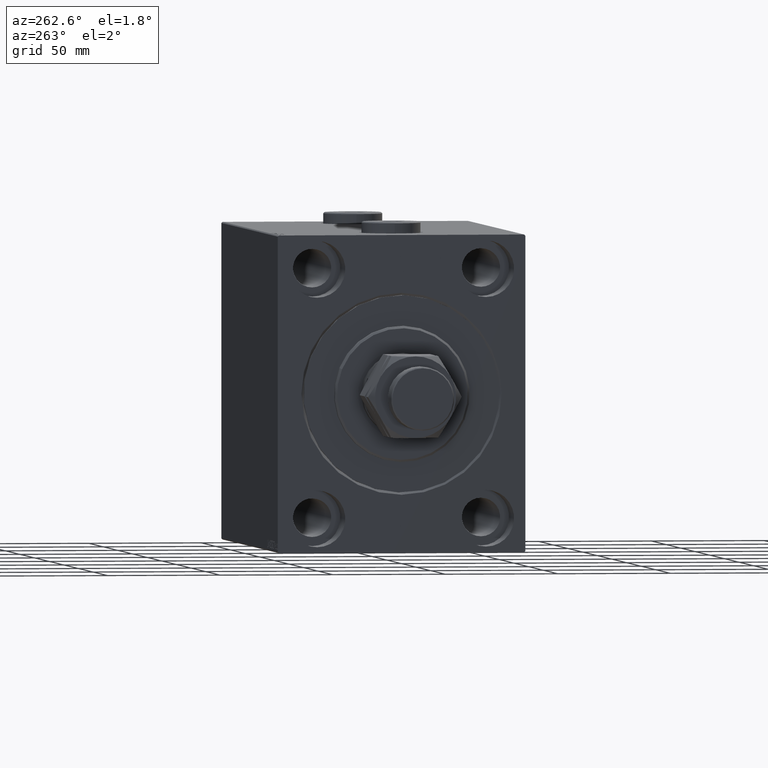
[diagram: clean part render]
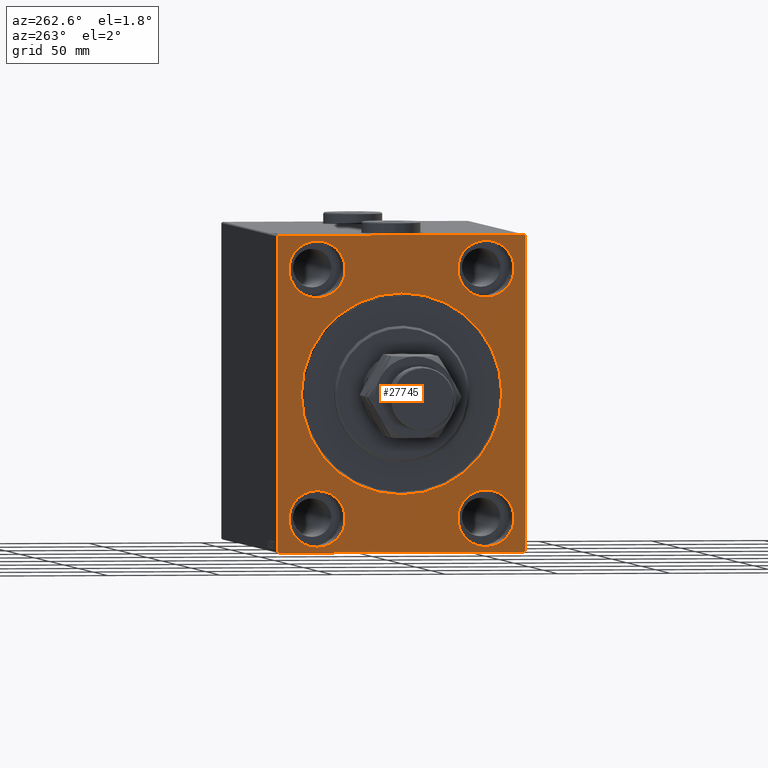
[diagram: same view with one face highlighted and labeled with its STEP entity id]
A machine part, auxiliary view. The second image highlights one B-rep face of the part: STEP entity #27745.
In plain terms, the highlighted planar face has unit normal (1, 0, 0).
Its self-contained STEP definition (entity closure, byte-faithful):
#203 = EDGE_LOOP ( 'NONE', ( #43280, #44381, #40561, #21263, #31493, #28659, #39140, #46953 ) ) ;
#244 = CARTESIAN_POINT ( 'NONE',  ( 0.000000000000000000, 37.50000000000000711, 67.50000000000000000 ) ) ;
#776 = AXIS2_PLACEMENT_3D ( 'NONE', #29131, #18419, #21264 ) ;
#875 = VERTEX_POINT ( 'NONE', #20127 ) ;
#919 = ORIENTED_EDGE ( 'NONE', *, *, #45797, .F. ) ;
#1018 = DIRECTION ( 'NONE',  ( -1.000000000000000000, 0.000000000000000000, 0.000000000000000000 ) ) ;
#1325 = CARTESIAN_POINT ( 'NONE',  ( 0.000000000000000000, 5.449678256205716459E-15, -44.49999999999995737 ) ) ;
#1589 = CARTESIAN_POINT ( 'NONE',  ( 0.000000000000000000, -37.50000000000002132, -54.99999999999999289 ) ) ;
#1684 = CIRCLE ( 'NONE', #31325, 12.49999999999999645 ) ;
#2136 = CARTESIAN_POINT ( 'NONE',  ( 0.000000000000000000, 54.99999999999999289, 69.50000000000002842 ) ) ;
#2695 = DIRECTION ( 'NONE',  ( 0.000000000000000000, 1.000000000000000000, 2.523234146875355012E-16 ) ) ;
#3017 = EDGE_CURVE ( 'NONE', #35442, #17844, #14392, .T. ) ;
#3040 = VERTEX_POINT ( 'NONE', #1325 ) ;
#3606 = FACE_BOUND ( 'NONE', #39785, .T. ) ;
#3824 = EDGE_CURVE ( 'NONE', #37777, #28014, #36268, .T. ) ;
#3840 = FACE_BOUND ( 'NONE', #5149, .T. ) ;
#3854 = EDGE_CURVE ( 'NONE', #15208, #27625, #34171, .T. ) ;
#4324 = AXIS2_PLACEMENT_3D ( 'NONE', #1589, #45124, #19656 ) ;
#4401 = EDGE_CURVE ( 'NONE', #36960, #31613, #10237, .T. ) ;
#4756 = DIRECTION ( 'NONE',  ( 0.000000000000000000, 0.000000000000000000, 1.000000000000000000 ) ) ;
#4856 = CARTESIAN_POINT ( 'NONE',  ( 0.000000000000000000, 0.000000000000000000, 0.000000000000000000 ) ) ;
#4894 = CARTESIAN_POINT ( 'NONE',  ( 0.000000000000000000, -55.00000000000000711, -69.50000000000007105 ) ) ;
#4985 = EDGE_CURVE ( 'NONE', #45806, #27922, #27184, .T. ) ;
#5149 = EDGE_LOOP ( 'NONE', ( #44983, #38479 ) ) ;
#5191 = ORIENTED_EDGE ( 'NONE', *, *, #19477, .F. ) ;
#7546 = DIRECTION ( 'NONE',  ( 1.000000000000000000, 0.000000000000000000, 0.000000000000000000 ) ) ;
#7706 = CARTESIAN_POINT ( 'NONE',  ( 0.000000000000000000, 37.49999999999997868, -54.99999999999999289 ) ) ;
#7984 = EDGE_CURVE ( 'NONE', #31860, #11246, #11512, .T. ) ;
#8081 = CARTESIAN_POINT ( 'NONE',  ( 0.000000000000000000, 54.49999999999999289, 70.00000000000000000 ) ) ;
#8499 = CARTESIAN_POINT ( 'NONE',  ( 0.000000000000000000, -54.50000000000003553, 69.99999999999998579 ) ) ;
#9454 = EDGE_CURVE ( 'NONE', #36594, #3040, #11539, .T. ) ;
#9676 = CARTESIAN_POINT ( 'NONE',  ( 0.000000000000000000, -37.50000000000000711, 67.50000000000000000 ) ) ;
#9755 = CARTESIAN_POINT ( 'NONE',  ( 0.000000000000000000, 0.000000000000000000, 44.49999999999995737 ) ) ;
#9988 = CARTESIAN_POINT ( 'NONE',  ( 0.000000000000000000, -54.50000000000000711, -70.00000000000002842 ) ) ;
#10237 = LINE ( 'NONE', #43053, #18964 ) ;
#10240 = EDGE_CURVE ( 'NONE', #17844, #35442, #1684, .T. ) ;
#10977 = FACE_BOUND ( 'NONE', #24381, .T. ) ;
#11246 = VERTEX_POINT ( 'NONE', #38907 ) ;
#11512 = CIRCLE ( 'NONE', #38088, 12.49999999999999645 ) ;
#11539 = CIRCLE ( 'NONE', #44207, 44.49999999999995737 ) ;
#11550 = CARTESIAN_POINT ( 'NONE',  ( 0.000000000000000000, 37.50000000000000711, 42.50000000000000711 ) ) ;
#12035 = CARTESIAN_POINT ( 'NONE',  ( 0.000000000000000000, -37.50000000000000711, 55.00000000000000711 ) ) ;
#12231 = ORIENTED_EDGE ( 'NONE', *, *, #7984, .F. ) ;
#12445 = EDGE_CURVE ( 'NONE', #875, #31613, #46220, .T. ) ;
#12647 = VECTOR ( 'NONE', #24588, 1000.000000000000000 ) ;
#12920 = DIRECTION ( 'NONE',  ( 1.000000000000000000, 0.000000000000000000, 0.000000000000000000 ) ) ;
#12979 = AXIS2_PLACEMENT_3D ( 'NONE', #26682, #1018, #15055 ) ;
#12982 = EDGE_LOOP ( 'NONE', ( #12231, #5191 ) ) ;
#14339 = CARTESIAN_POINT ( 'NONE',  ( 0.000000000000000000, 37.50000000000000711, 55.00000000000000711 ) ) ;
#14392 = CIRCLE ( 'NONE', #18187, 12.49999999999999645 ) ;
#14630 = DIRECTION ( 'NONE',  ( 0.000000000000000000, -1.982541115402065110E-16, 1.000000000000000000 ) ) ;
#14677 = VECTOR ( 'NONE', #44653, 1000.000000000000000 ) ;
#14833 = CARTESIAN_POINT ( 'NONE',  ( 0.000000000000000000, 37.49999999999997868, -42.49999999999999289 ) ) ;
#14948 = ORIENTED_EDGE ( 'NONE', *, *, #25339, .F. ) ;
#15055 = DIRECTION ( 'NONE',  ( 0.000000000000000000, 0.000000000000000000, 1.000000000000000000 ) ) ;
#15094 = VERTEX_POINT ( 'NONE', #11550 ) ;
#15208 = VERTEX_POINT ( 'NONE', #23170 ) ;
#15480 = DIRECTION ( 'NONE',  ( 0.000000000000000000, 0.000000000000000000, -1.000000000000000000 ) ) ;
#16491 = CARTESIAN_POINT ( 'NONE',  ( 0.000000000000000000, -55.00000000000000711, -70.00000000000002842 ) ) ;
#17395 = PLANE ( 'NONE',  #23386 ) ;
#17525 = CARTESIAN_POINT ( 'NONE',  ( 0.000000000000000000, -55.00000000000000711, 69.49999999999998579 ) ) ;
#17844 = VERTEX_POINT ( 'NONE', #9676 ) ;
#17920 = ORIENTED_EDGE ( 'NONE', *, *, #3017, .F. ) ;
#18013 = CARTESIAN_POINT ( 'NONE',  ( 0.000000000000000000, 0.000000000000000000, 0.000000000000000000 ) ) ;
#18187 = AXIS2_PLACEMENT_3D ( 'NONE', #12035, #26066, #40593 ) ;
#18419 = DIRECTION ( 'NONE',  ( -1.000000000000000000, 0.000000000000000000, 0.000000000000000000 ) ) ;
#18749 = CIRCLE ( 'NONE', #4324, 12.49999999999999645 ) ;
#18964 = VECTOR ( 'NONE', #29012, 1000.000000000000000 ) ;
#19272 = CARTESIAN_POINT ( 'NONE',  ( 0.000000000000000000, 54.50000000000004974, -70.00000000000000000 ) ) ;
#19477 = EDGE_CURVE ( 'NONE', #11246, #31860, #30096, .T. ) ;
#19656 = DIRECTION ( 'NONE',  ( 0.000000000000000000, 0.000000000000000000, 1.000000000000000000 ) ) ;
#20074 = CARTESIAN_POINT ( 'NONE',  ( 0.000000000000000000, 55.00000000000002132, -69.50000000000000000 ) ) ;
#20127 = CARTESIAN_POINT ( 'NONE',  ( 0.000000000000000000, 54.49999999999999289, 70.00000000000000000 ) ) ;
#20571 = EDGE_LOOP ( 'NONE', ( #26195, #17920 ) ) ;
#21263 = ORIENTED_EDGE ( 'NONE', *, *, #31224, .T. ) ;
#21264 = DIRECTION ( 'NONE',  ( 0.000000000000000000, 0.000000000000000000, 1.000000000000000000 ) ) ;
#22047 = DIRECTION ( 'NONE',  ( 0.000000000000000000, 0.000000000000000000, -1.000000000000000000 ) ) ;
#22665 = ORIENTED_EDGE ( 'NONE', *, *, #40742, .F. ) ;
#22708 = VECTOR ( 'NONE', #41149, 1000.000000000000000 ) ;
#23094 = CARTESIAN_POINT ( 'NONE',  ( 0.000000000000000000, 55.00000000000002132, -69.50000000000000000 ) ) ;
#23170 = CARTESIAN_POINT ( 'NONE',  ( 0.000000000000000000, -37.50000000000002132, -67.49999999999998579 ) ) ;
#23386 = AXIS2_PLACEMENT_3D ( 'NONE', #32366, #46656, #28804 ) ;
#23576 = VECTOR ( 'NONE', #2695, 1000.000000000000000 ) ;
#23942 = EDGE_CURVE ( 'NONE', #37777, #27922, #46238, .T. ) ;
#24381 = EDGE_LOOP ( 'NONE', ( #919, #22665 ) ) ;
#24588 = DIRECTION ( 'NONE',  ( 0.000000000000000000, -0.7071067811865279218, -0.7071067811865671127 ) ) ;
#24687 = CARTESIAN_POINT ( 'NONE',  ( 0.000000000000000000, -37.50000000000000711, 55.00000000000000711 ) ) ;
#25154 = DIRECTION ( 'NONE',  ( -1.000000000000000000, 0.000000000000000000, 0.000000000000000000 ) ) ;
#25339 = EDGE_CURVE ( 'NONE', #27625, #15208, #18749, .T. ) ;
#26066 = DIRECTION ( 'NONE',  ( -1.000000000000000000, 0.000000000000000000, 0.000000000000000000 ) ) ;
#26195 = ORIENTED_EDGE ( 'NONE', *, *, #10240, .F. ) ;
#26423 = VERTEX_POINT ( 'NONE', #4894 ) ;
#26682 = CARTESIAN_POINT ( 'NONE',  ( 0.000000000000000000, 37.50000000000000711, 55.00000000000000711 ) ) ;
#27184 = LINE ( 'NONE', #16491, #23576 ) ;
#27600 = AXIS2_PLACEMENT_3D ( 'NONE', #14339, #29714, #4756 ) ;
#27625 = VERTEX_POINT ( 'NONE', #29337 ) ;
#27745 = ADVANCED_FACE ( 'NONE', ( #3840, #39522, #29046, #10977, #3606, #32130 ), #17395, .F. ) ;
#27922 = VERTEX_POINT ( 'NONE', #19272 ) ;
#28014 = VERTEX_POINT ( 'NONE', #2136 ) ;
#28351 = CIRCLE ( 'NONE', #27600, 12.49999999999999645 ) ;
#28419 = CARTESIAN_POINT ( 'NONE',  ( 0.000000000000000000, 55.00000000000002132, -70.00000000000000000 ) ) ;
#28659 = ORIENTED_EDGE ( 'NONE', *, *, #23942, .T. ) ;
#28729 = DIRECTION ( 'NONE',  ( 0.000000000000000000, 0.000000000000000000, 1.000000000000000000 ) ) ;
#28804 = DIRECTION ( 'NONE',  ( 0.000000000000000000, 0.000000000000000000, -1.000000000000000000 ) ) ;
#29012 = DIRECTION ( 'NONE',  ( -0.000000000000000000, 0.7071067811865279218, 0.7071067811865671127 ) ) ;
#29046 = FACE_BOUND ( 'NONE', #20571, .T. ) ;
#29131 = CARTESIAN_POINT ( 'NONE',  ( 0.000000000000000000, -37.50000000000002132, -54.99999999999999289 ) ) ;
#29337 = CARTESIAN_POINT ( 'NONE',  ( 0.000000000000000000, -37.50000000000002132, -42.49999999999999289 ) ) ;
#29497 = LINE ( 'NONE', #8081, #22708 ) ;
#29714 = DIRECTION ( 'NONE',  ( -1.000000000000000000, 0.000000000000000000, 0.000000000000000000 ) ) ;
#30096 = CIRCLE ( 'NONE', #36188, 12.49999999999999645 ) ;
#31224 = EDGE_CURVE ( 'NONE', #875, #28014, #29497, .T. ) ;
#31325 = AXIS2_PLACEMENT_3D ( 'NONE', #24687, #25154, #28729 ) ;
#31493 = ORIENTED_EDGE ( 'NONE', *, *, #3824, .F. ) ;
#31613 = VERTEX_POINT ( 'NONE', #8499 ) ;
#31860 = VERTEX_POINT ( 'NONE', #14833 ) ;
#31869 = VECTOR ( 'NONE', #43541, 999.9999999999998863 ) ;
#32104 = CARTESIAN_POINT ( 'NONE',  ( 0.000000000000000000, -54.50000000000000711, -70.00000000000002842 ) ) ;
#32130 = FACE_OUTER_BOUND ( 'NONE', #203, .T. ) ;
#32366 = CARTESIAN_POINT ( 'NONE',  ( 0.000000000000000000, 0.000000000000000000, 0.000000000000000000 ) ) ;
#32528 = VERTEX_POINT ( 'NONE', #244 ) ;
#32830 = AXIS2_PLACEMENT_3D ( 'NONE', #4856, #12920, #41932 ) ;
#32921 = DIRECTION ( 'NONE',  ( 0.000000000000000000, 0.000000000000000000, 1.000000000000000000 ) ) ;
#33468 = ORIENTED_EDGE ( 'NONE', *, *, #3854, .F. ) ;
#33472 = CIRCLE ( 'NONE', #12979, 12.49999999999999645 ) ;
#33617 = CARTESIAN_POINT ( 'NONE',  ( 0.000000000000000000, 37.49999999999997868, -54.99999999999999289 ) ) ;
#33775 = CARTESIAN_POINT ( 'NONE',  ( 0.000000000000000000, -55.00000000000000711, 69.99999999999998579 ) ) ;
#33849 = DIRECTION ( 'NONE',  ( -1.000000000000000000, 0.000000000000000000, 0.000000000000000000 ) ) ;
#34171 = CIRCLE ( 'NONE', #776, 12.49999999999999645 ) ;
#35442 = VERTEX_POINT ( 'NONE', #40241 ) ;
#35790 = VECTOR ( 'NONE', #15480, 1000.000000000000000 ) ;
#36162 = LINE ( 'NONE', #32104, #31869 ) ;
#36188 = AXIS2_PLACEMENT_3D ( 'NONE', #33617, #33849, #41002 ) ;
#36268 = LINE ( 'NONE', #28419, #44065 ) ;
#36504 = DIRECTION ( 'NONE',  ( -1.000000000000000000, 0.000000000000000000, 0.000000000000000000 ) ) ;
#36594 = VERTEX_POINT ( 'NONE', #9755 ) ;
#36960 = VERTEX_POINT ( 'NONE', #17525 ) ;
#37777 = VERTEX_POINT ( 'NONE', #23094 ) ;
#37861 = EDGE_CURVE ( 'NONE', #45806, #26423, #36162, .T. ) ;
#37985 = CARTESIAN_POINT ( 'NONE',  ( 0.000000000000000000, 54.99999999999999289, 70.00000000000000000 ) ) ;
#38088 = AXIS2_PLACEMENT_3D ( 'NONE', #7706, #36504, #32921 ) ;
#38479 = ORIENTED_EDGE ( 'NONE', *, *, #43814, .T. ) ;
#38907 = CARTESIAN_POINT ( 'NONE',  ( 0.000000000000000000, 37.49999999999997868, -67.49999999999998579 ) ) ;
#38919 = CIRCLE ( 'NONE', #32830, 44.49999999999995737 ) ;
#39140 = ORIENTED_EDGE ( 'NONE', *, *, #4985, .F. ) ;
#39522 = FACE_BOUND ( 'NONE', #12982, .T. ) ;
#39785 = EDGE_LOOP ( 'NONE', ( #14948, #33468 ) ) ;
#40241 = CARTESIAN_POINT ( 'NONE',  ( 0.000000000000000000, -37.50000000000000711, 42.50000000000000711 ) ) ;
#40561 = ORIENTED_EDGE ( 'NONE', *, *, #12445, .F. ) ;
#40593 = DIRECTION ( 'NONE',  ( 0.000000000000000000, 0.000000000000000000, 1.000000000000000000 ) ) ;
#40691 = LINE ( 'NONE', #33775, #35790 ) ;
#40742 = EDGE_CURVE ( 'NONE', #15094, #32528, #33472, .T. ) ;
#41002 = DIRECTION ( 'NONE',  ( 0.000000000000000000, 0.000000000000000000, 1.000000000000000000 ) ) ;
#41149 = DIRECTION ( 'NONE',  ( -0.000000000000000000, 0.7071067811865671127, -0.7071067811865279218 ) ) ;
#41881 = EDGE_CURVE ( 'NONE', #36960, #26423, #40691, .T. ) ;
#41932 = DIRECTION ( 'NONE',  ( 0.000000000000000000, 0.000000000000000000, -1.000000000000000000 ) ) ;
#43053 = CARTESIAN_POINT ( 'NONE',  ( 0.000000000000000000, -55.00000000000000711, 69.49999999999998579 ) ) ;
#43280 = ORIENTED_EDGE ( 'NONE', *, *, #41881, .F. ) ;
#43541 = DIRECTION ( 'NONE',  ( -0.000000000000000000, -0.7071067811865771047, 0.7071067811865180408 ) ) ;
#43814 = EDGE_CURVE ( 'NONE', #3040, #36594, #38919, .T. ) ;
#44065 = VECTOR ( 'NONE', #14630, 1000.000000000000000 ) ;
#44207 = AXIS2_PLACEMENT_3D ( 'NONE', #18013, #7546, #22047 ) ;
#44381 = ORIENTED_EDGE ( 'NONE', *, *, #4401, .T. ) ;
#44653 = DIRECTION ( 'NONE',  ( 0.000000000000000000, -1.000000000000000000, -1.261617073437677999E-16 ) ) ;
#44983 = ORIENTED_EDGE ( 'NONE', *, *, #9454, .T. ) ;
#45124 = DIRECTION ( 'NONE',  ( -1.000000000000000000, 0.000000000000000000, 0.000000000000000000 ) ) ;
#45797 = EDGE_CURVE ( 'NONE', #32528, #15094, #28351, .T. ) ;
#45806 = VERTEX_POINT ( 'NONE', #9988 ) ;
#46220 = LINE ( 'NONE', #37985, #14677 ) ;
#46238 = LINE ( 'NONE', #20074, #12647 ) ;
#46656 = DIRECTION ( 'NONE',  ( 1.000000000000000000, 0.000000000000000000, 0.000000000000000000 ) ) ;
#46953 = ORIENTED_EDGE ( 'NONE', *, *, #37861, .T. ) ;